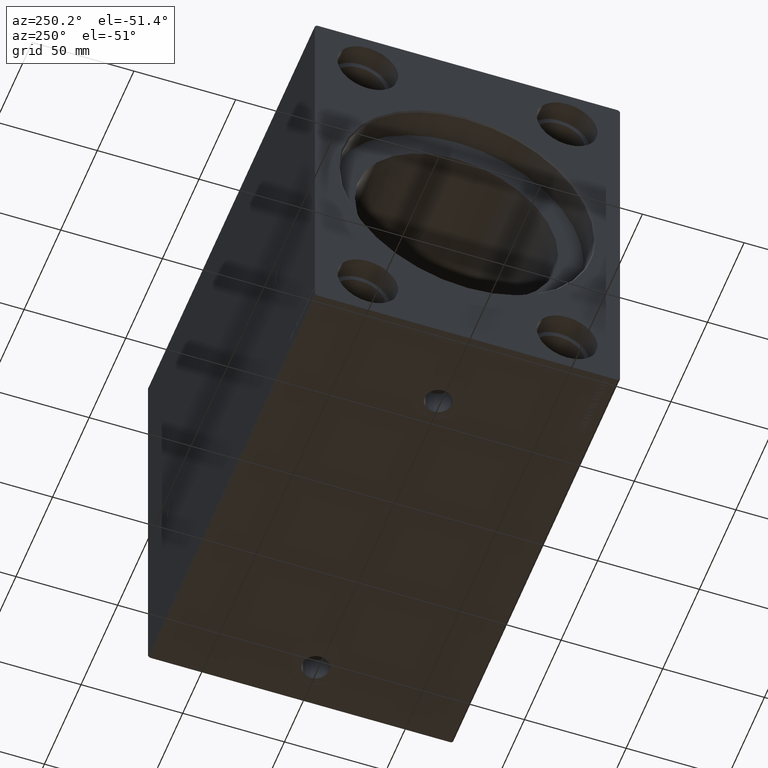
[diagram: clean part render]
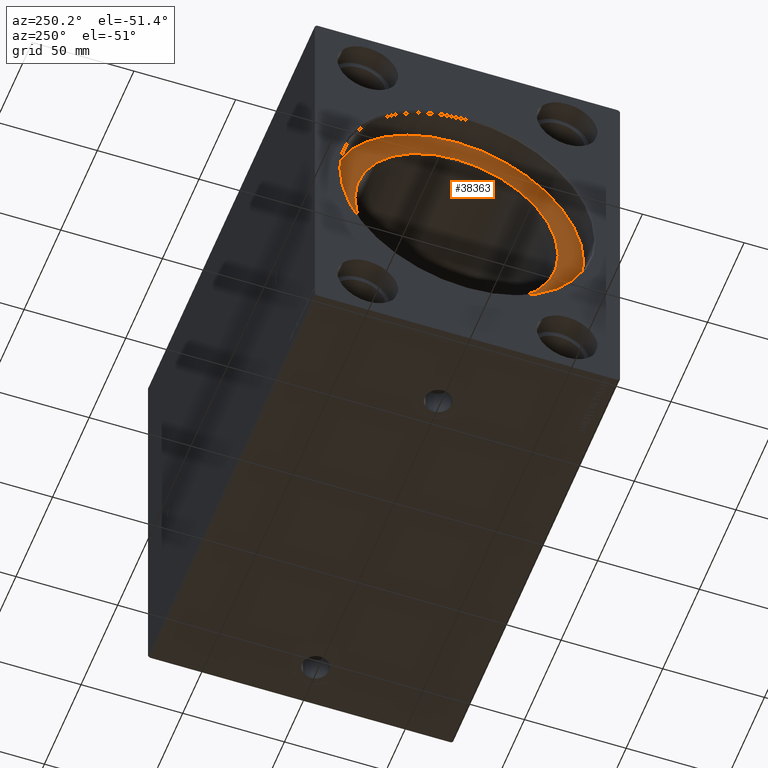
[diagram: same view with one face highlighted and labeled with its STEP entity id]
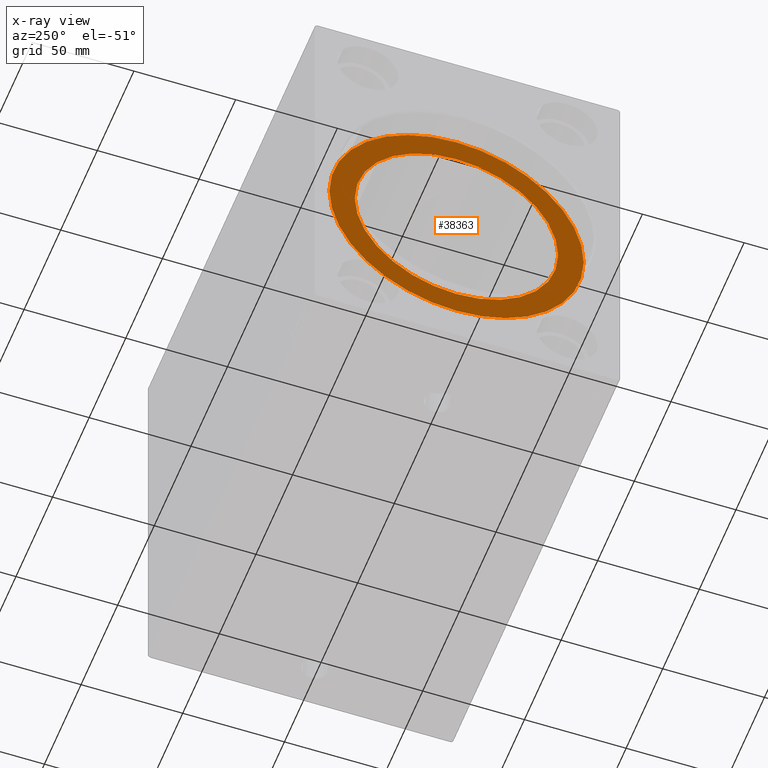
[diagram: x-ray of the same camera — body ghosted, the highlighted face saturated]
A machine part, auxiliary view. The second image highlights one B-rep face of the part: STEP entity #38363.
The next image is the same camera in x-ray: the body ghosted, the highlighted face saturated — about 0% of this face is hidden behind the body in this view.
In plain terms, the highlighted planar face has unit normal (-1, 0, 0).
Its self-contained STEP definition (entity closure, byte-faithful):
#2874 = FACE_BOUND ( 'NONE', #19782, .T. ) ;
#3653 = CARTESIAN_POINT ( 'NONE',  ( 15.00000000000001421, 0.000000000000000000, 0.000000000000000000 ) ) ;
#5947 = CIRCLE ( 'NONE', #29980, 62.50000000000000000 ) ;
#6065 = EDGE_CURVE ( 'NONE', #12286, #7226, #9961, .T. ) ;
#6096 = FACE_OUTER_BOUND ( 'NONE', #7426, .T. ) ;
#6702 = CARTESIAN_POINT ( 'NONE',  ( 15.00000000000000000, 0.000000000000000000, 0.000000000000000000 ) ) ;
#6975 = CARTESIAN_POINT ( 'NONE',  ( 15.00000000000000000, 0.000000000000000000, 0.000000000000000000 ) ) ;
#7114 = DIRECTION ( 'NONE',  ( -1.000000000000000000, 0.000000000000000000, 0.000000000000000000 ) ) ;
#7226 = VERTEX_POINT ( 'NONE', #40620 ) ;
#7426 = EDGE_LOOP ( 'NONE', ( #22977, #25184 ) ) ;
#7701 = DIRECTION ( 'NONE',  ( 0.000000000000000000, 0.000000000000000000, 1.000000000000000000 ) ) ;
#9523 = CARTESIAN_POINT ( 'NONE',  ( 15.00000000000000000, 0.000000000000000000, 0.000000000000000000 ) ) ;
#9961 = CIRCLE ( 'NONE', #13414, 50.00000000000000000 ) ;
#10062 = CIRCLE ( 'NONE', #11448, 50.00000000000000000 ) ;
#10211 = DIRECTION ( 'NONE',  ( -1.000000000000000000, 0.000000000000000000, 0.000000000000000000 ) ) ;
#10294 = EDGE_CURVE ( 'NONE', #7226, #12286, #10062, .T. ) ;
#10907 = EDGE_CURVE ( 'NONE', #30508, #36417, #5947, .T. ) ;
#11387 = AXIS2_PLACEMENT_3D ( 'NONE', #6702, #7114, #39780 ) ;
#11448 = AXIS2_PLACEMENT_3D ( 'NONE', #3653, #30495, #7701 ) ;
#12244 = CARTESIAN_POINT ( 'NONE',  ( 15.00000000000001421, 0.000000000000000000, 0.000000000000000000 ) ) ;
#12286 = VERTEX_POINT ( 'NONE', #28591 ) ;
#12448 = DIRECTION ( 'NONE',  ( -1.000000000000000000, 0.000000000000000000, 0.000000000000000000 ) ) ;
#12973 = DIRECTION ( 'NONE',  ( 0.000000000000000000, 0.000000000000000000, 1.000000000000000000 ) ) ;
#13414 = AXIS2_PLACEMENT_3D ( 'NONE', #12244, #12448, #38642 ) ;
#13984 = CARTESIAN_POINT ( 'NONE',  ( 15.00000000000000000, 7.654042494670957804E-15, -62.50000000000000000 ) ) ;
#19782 = EDGE_LOOP ( 'NONE', ( #23173, #29932 ) ) ;
#22977 = ORIENTED_EDGE ( 'NONE', *, *, #10907, .T. ) ;
#23173 = ORIENTED_EDGE ( 'NONE', *, *, #6065, .F. ) ;
#25184 = ORIENTED_EDGE ( 'NONE', *, *, #34193, .T. ) ;
#26952 = DIRECTION ( 'NONE',  ( 0.000000000000000000, 0.000000000000000000, 1.000000000000000000 ) ) ;
#28591 = CARTESIAN_POINT ( 'NONE',  ( 15.00000000000001421, 0.000000000000000000, 50.00000000000000000 ) ) ;
#29932 = ORIENTED_EDGE ( 'NONE', *, *, #10294, .F. ) ;
#29980 = AXIS2_PLACEMENT_3D ( 'NONE', #6975, #10211, #26952 ) ;
#30495 = DIRECTION ( 'NONE',  ( -1.000000000000000000, 0.000000000000000000, 0.000000000000000000 ) ) ;
#30508 = VERTEX_POINT ( 'NONE', #33893 ) ;
#31879 = PLANE ( 'NONE',  #36855 ) ;
#32733 = DIRECTION ( 'NONE',  ( -1.000000000000000000, 0.000000000000000000, 0.000000000000000000 ) ) ;
#33893 = CARTESIAN_POINT ( 'NONE',  ( 15.00000000000000000, 0.000000000000000000, 62.50000000000000000 ) ) ;
#34193 = EDGE_CURVE ( 'NONE', #36417, #30508, #39503, .T. ) ;
#36417 = VERTEX_POINT ( 'NONE', #13984 ) ;
#36855 = AXIS2_PLACEMENT_3D ( 'NONE', #9523, #32733, #12973 ) ;
#38363 = ADVANCED_FACE ( 'NONE', ( #2874, #6096 ), #31879, .T. ) ;
#38642 = DIRECTION ( 'NONE',  ( 0.000000000000000000, 0.000000000000000000, 1.000000000000000000 ) ) ;
#39503 = CIRCLE ( 'NONE', #11387, 62.50000000000000000 ) ;
#39780 = DIRECTION ( 'NONE',  ( 0.000000000000000000, 0.000000000000000000, 1.000000000000000000 ) ) ;
#40620 = CARTESIAN_POINT ( 'NONE',  ( 15.00000000000001421, 6.123233995736766085E-15, -50.00000000000000000 ) ) ;